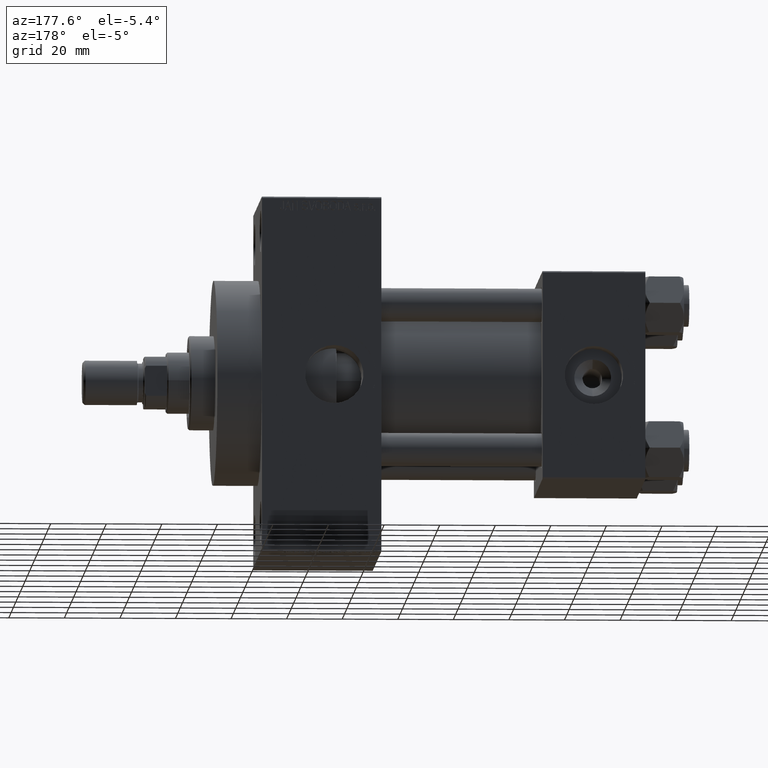
[diagram: clean part render]
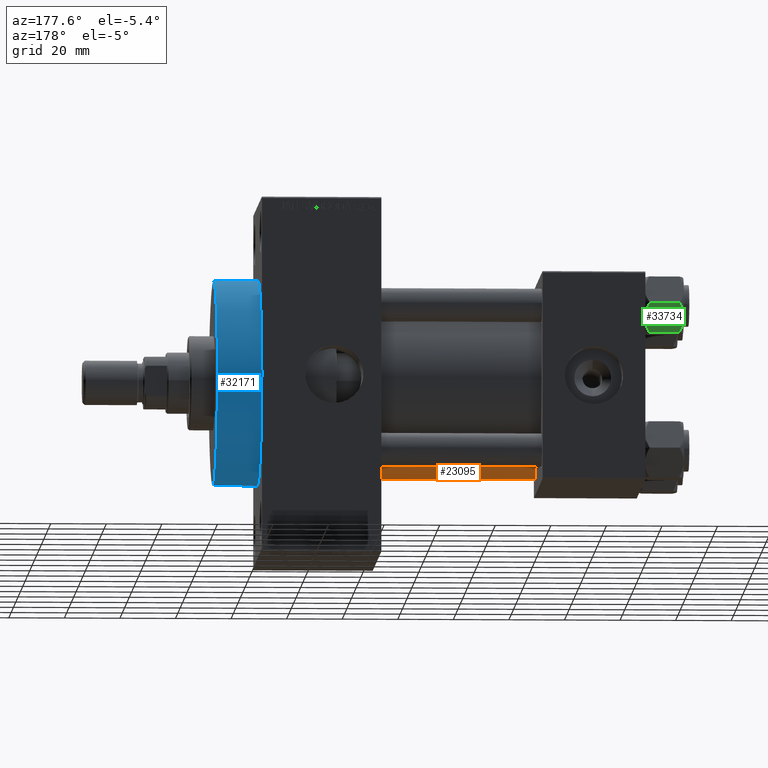
[diagram: same view with three faces highlighted in distinct colors, each labeled with its STEP entity id]
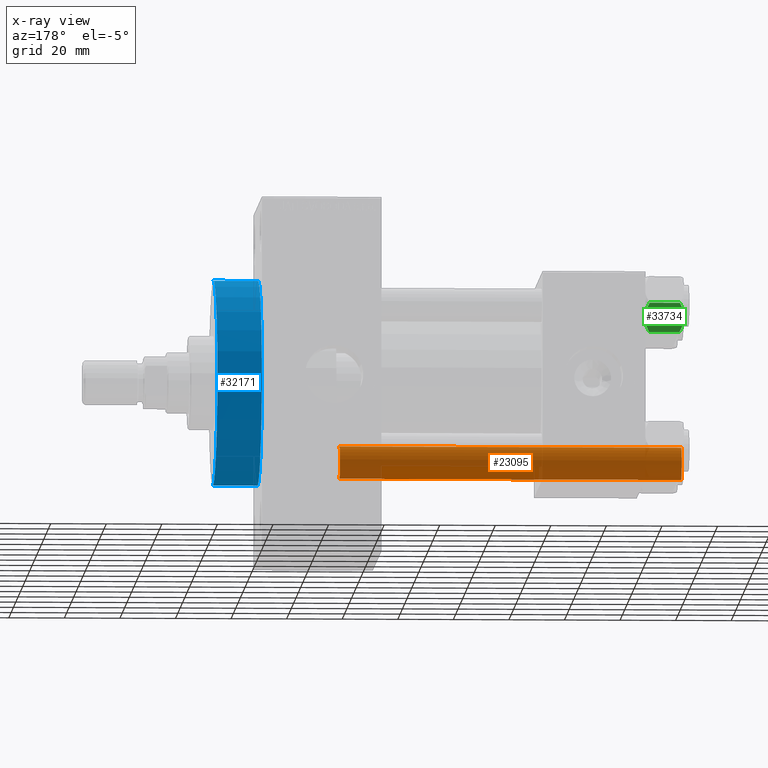
[diagram: x-ray of the same camera — body ghosted, the three highlighted faces saturated]
A machine part, auxiliary view with three faces highlighted in distinct colors.
The next image is the same camera in x-ray (body ghosted, the three faces saturated) — at least one of them is partly hidden behind the body in this view.
Their STEP definitions:

[orange] entity #23095 — the highlighted cylindrical surface (edge-blend (fillet) strip) has radius 6 mm, axis along (-1, 0, 0).
#2089 = DIRECTION ( 'NONE',  ( -0.000000000000000000, -0.000000000000000000, -1.000000000000000000 ) ) ;
#2328 = CARTESIAN_POINT ( 'NONE',  ( -6.000000000000000888, 0.000000000000000000, 124.0000000000000000 ) ) ;
#2750 = VERTEX_POINT ( 'NONE', #39087 ) ;
#4445 = CYLINDRICAL_SURFACE ( 'NONE', #10759, 6.000000000000000888 ) ;
#5394 = DIRECTION ( 'NONE',  ( -0.000000000000000000, -0.000000000000000000, -1.000000000000000000 ) ) ;
#6761 = VECTOR ( 'NONE', #2089, 1000.000000000000000 ) ;
#6886 = ORIENTED_EDGE ( 'NONE', *, *, #37283, .F. ) ;
#7507 = EDGE_CURVE ( 'NONE', #23449, #25706, #10220, .T. ) ;
#8999 = CIRCLE ( 'NONE', #43643, 6.000000000000000888 ) ;
#10220 = CIRCLE ( 'NONE', #14848, 6.000000000000000888 ) ;
#10759 = AXIS2_PLACEMENT_3D ( 'NONE', #19187, #19893, #33861 ) ;
#12713 = DIRECTION ( 'NONE',  ( -0.000000000000000000, -0.000000000000000000, 1.000000000000000000 ) ) ;
#14646 = ORIENTED_EDGE ( 'NONE', *, *, #18902, .T. ) ;
#14848 = AXIS2_PLACEMENT_3D ( 'NONE', #23781, #12713, #24740 ) ;
#17003 = EDGE_CURVE ( 'NONE', #37141, #2750, #8999, .T. ) ;
#17534 = DIRECTION ( 'NONE',  ( 0.000000000000000000, 0.000000000000000000, -1.000000000000000000 ) ) ;
#17612 = ORIENTED_EDGE ( 'NONE', *, *, #17003, .T. ) ;
#18029 = ORIENTED_EDGE ( 'NONE', *, *, #7507, .T. ) ;
#18902 = EDGE_CURVE ( 'NONE', #2750, #23449, #20442, .T. ) ;
#19187 = CARTESIAN_POINT ( 'NONE',  ( 0.000000000000000000, 0.000000000000000000, 124.0000000000000000 ) ) ;
#19893 = DIRECTION ( 'NONE',  ( -0.000000000000000000, -0.000000000000000000, -1.000000000000000000 ) ) ;
#20442 = LINE ( 'NONE', #2328, #6761 ) ;
#20849 = LINE ( 'NONE', #23735, #23430 ) ;
#23095 = ADVANCED_FACE ( 'NONE', ( #37494 ), #4445, .T. ) ;
#23430 = VECTOR ( 'NONE', #5394, 1000.000000000000000 ) ;
#23449 = VERTEX_POINT ( 'NONE', #41600 ) ;
#23735 = CARTESIAN_POINT ( 'NONE',  ( 6.000000000000000888, 7.347880794884120722E-16, 124.0000000000000000 ) ) ;
#23781 = CARTESIAN_POINT ( 'NONE',  ( 0.000000000000000000, 0.000000000000000000, 0.4999999999999865663 ) ) ;
#24609 = EDGE_LOOP ( 'NONE', ( #6886, #17612, #14646, #18029 ) ) ;
#24740 = DIRECTION ( 'NONE',  ( 1.000000000000000000, 0.000000000000000000, 0.000000000000000000 ) ) ;
#25231 = DIRECTION ( 'NONE',  ( 1.000000000000000000, 0.000000000000000000, 0.000000000000000000 ) ) ;
#25706 = VERTEX_POINT ( 'NONE', #47556 ) ;
#33861 = DIRECTION ( 'NONE',  ( -1.000000000000000000, 0.000000000000000000, 0.000000000000000000 ) ) ;
#35538 = CARTESIAN_POINT ( 'NONE',  ( 6.000000000000000888, 7.347880794884120722E-16, 123.5000000000000426 ) ) ;
#37141 = VERTEX_POINT ( 'NONE', #35538 ) ;
#37283 = EDGE_CURVE ( 'NONE', #37141, #25706, #20849, .T. ) ;
#37494 = FACE_OUTER_BOUND ( 'NONE', #24609, .T. ) ;
#39087 = CARTESIAN_POINT ( 'NONE',  ( -6.000000000000000888, 0.000000000000000000, 123.5000000000000426 ) ) ;
#41600 = CARTESIAN_POINT ( 'NONE',  ( -6.000000000000000888, 0.000000000000000000, 0.4999999999999865663 ) ) ;
#43643 = AXIS2_PLACEMENT_3D ( 'NONE', #47169, #17534, #25231 ) ;
#47169 = CARTESIAN_POINT ( 'NONE',  ( 0.000000000000000000, 0.000000000000000000, 123.5000000000000426 ) ) ;
#47556 = CARTESIAN_POINT ( 'NONE',  ( 6.000000000000000888, 7.347880794884120722E-16, 0.4999999999999865663 ) ) ;

[blue] entity #32171 — the highlighted cylindrical surface (partial cylindrical patch) has radius 37 mm, axis along (-1, -0, -0).
#270 = EDGE_LOOP ( 'NONE', ( #39068, #43262, #32521, #40527 ) ) ;
#972 = CARTESIAN_POINT ( 'NONE',  ( 154.0000000000000284, 0.000000000000000000, 0.000000000000000000 ) ) ;
#4518 = CIRCLE ( 'NONE', #6047, 37.00000000000000000 ) ;
#5699 = EDGE_CURVE ( 'NONE', #33752, #13421, #17079, .T. ) ;
#5858 = DIRECTION ( 'NONE',  ( -1.000000000000000000, -0.000000000000000000, -0.000000000000000000 ) ) ;
#6047 = AXIS2_PLACEMENT_3D ( 'NONE', #47114, #9752, #24458 ) ;
#7098 = EDGE_CURVE ( 'NONE', #17396, #33752, #31420, .T. ) ;
#9752 = DIRECTION ( 'NONE',  ( 1.000000000000000000, 0.000000000000000000, 0.000000000000000000 ) ) ;
#10779 = VECTOR ( 'NONE', #24167, 1000.000000000000000 ) ;
#11122 = CYLINDRICAL_SURFACE ( 'NONE', #36359, 37.00000000000000000 ) ;
#13129 = DIRECTION ( 'NONE',  ( 0.000000000000000000, 0.000000000000000000, -1.000000000000000000 ) ) ;
#13421 = VERTEX_POINT ( 'NONE', #26701 ) ;
#17079 = CIRCLE ( 'NONE', #23219, 37.00000000000000000 ) ;
#17396 = VERTEX_POINT ( 'NONE', #22969 ) ;
#20968 = VECTOR ( 'NONE', #5858, 1000.000000000000000 ) ;
#21152 = EDGE_CURVE ( 'NONE', #17396, #21915, #4518, .T. ) ;
#21915 = VERTEX_POINT ( 'NONE', #44737 ) ;
#22204 = DIRECTION ( 'NONE',  ( -1.000000000000000000, -0.000000000000000000, -0.000000000000000000 ) ) ;
#22969 = CARTESIAN_POINT ( 'NONE',  ( 154.0000000000000284, 4.531193156845206793E-15, -37.00000000000000000 ) ) ;
#23219 = AXIS2_PLACEMENT_3D ( 'NONE', #39155, #41171, #13129 ) ;
#23288 = CARTESIAN_POINT ( 'NONE',  ( 138.0000000000000000, 4.531193156845206793E-15, -37.00000000000000000 ) ) ;
#24167 = DIRECTION ( 'NONE',  ( -1.000000000000000000, -0.000000000000000000, -0.000000000000000000 ) ) ;
#24458 = DIRECTION ( 'NONE',  ( 0.000000000000000000, 0.000000000000000000, -1.000000000000000000 ) ) ;
#25121 = CARTESIAN_POINT ( 'NONE',  ( 154.0000000000000284, 0.000000000000000000, 37.00000000000000000 ) ) ;
#26701 = CARTESIAN_POINT ( 'NONE',  ( 138.0000000000000000, 0.000000000000000000, 37.00000000000000000 ) ) ;
#26770 = FACE_OUTER_BOUND ( 'NONE', #270, .T. ) ;
#31420 = LINE ( 'NONE', #35037, #20968 ) ;
#32171 = ADVANCED_FACE ( 'NONE', ( #26770 ), #11122, .T. ) ;
#32521 = ORIENTED_EDGE ( 'NONE', *, *, #5699, .T. ) ;
#33752 = VERTEX_POINT ( 'NONE', #23288 ) ;
#35037 = CARTESIAN_POINT ( 'NONE',  ( 154.0000000000000284, 4.531193156845206793E-15, -37.00000000000000000 ) ) ;
#35727 = LINE ( 'NONE', #25121, #10779 ) ;
#36359 = AXIS2_PLACEMENT_3D ( 'NONE', #972, #22204, #40524 ) ;
#39068 = ORIENTED_EDGE ( 'NONE', *, *, #21152, .F. ) ;
#39155 = CARTESIAN_POINT ( 'NONE',  ( 138.0000000000000000, 0.000000000000000000, 0.000000000000000000 ) ) ;
#39878 = EDGE_CURVE ( 'NONE', #21915, #13421, #35727, .T. ) ;
#40524 = DIRECTION ( 'NONE',  ( 0.000000000000000000, 0.000000000000000000, 1.000000000000000000 ) ) ;
#40527 = ORIENTED_EDGE ( 'NONE', *, *, #39878, .F. ) ;
#41171 = DIRECTION ( 'NONE',  ( 1.000000000000000000, 0.000000000000000000, 0.000000000000000000 ) ) ;
#43262 = ORIENTED_EDGE ( 'NONE', *, *, #7098, .T. ) ;
#44737 = CARTESIAN_POINT ( 'NONE',  ( 154.0000000000000284, 0.000000000000000000, 37.00000000000000000 ) ) ;
#47114 = CARTESIAN_POINT ( 'NONE',  ( 154.0000000000000284, 0.000000000000000000, 0.000000000000000000 ) ) ;

[green] entity #33734 — the highlighted planar face has unit normal (-0, -0.866, 0.5).
#10 = VERTEX_POINT ( 'NONE', #35 ) ;
#35 = CARTESIAN_POINT ( 'NONE',  ( 11.62000000000000099, -1.689012838886770227E-15, -12.44321519197518633 ) ) ;
#359 = CARTESIAN_POINT ( 'NONE',  ( 10.69662495661650503, 1.599332489581333672, -13.28854452935655139 ) ) ;
#1917 = CARTESIAN_POINT ( 'NONE',  ( 8.969430103550381617, 4.590921729663312689, 3.523657060577888622E-15 ) ) ;
#3192 = CARTESIAN_POINT ( 'NONE',  ( 7.700834831386345058, 6.788193195293094284, -13.80960203119265906 ) ) ;
#3582 = ORIENTED_EDGE ( 'NONE', *, *, #40160, .F. ) ;
#5284 = CARTESIAN_POINT ( 'NONE',  ( 11.62000000000000099, -1.924525737834042474E-15, -1.556784808024813893 ) ) ;
#5367 = CARTESIAN_POINT ( 'NONE',  ( 8.209704053696576409, 5.906805847843727086, 3.430483436379916373E-15 ) ) ;
#5851 = CARTESIAN_POINT ( 'NONE',  ( 8.715000000000005187, 5.031607595987590109, 0.000000000000000000 ) ) ;
#8091 = VERTEX_POINT ( 'NONE', #34556 ) ;
#10045 = EDGE_CURVE ( 'NONE', #10, #11428, #41136, .T. ) ;
#10514 = CARTESIAN_POINT ( 'NONE',  ( 9.220295946303432189, 4.156409344131451356, -14.00000000000000178 ) ) ;
#10639 = CARTESIAN_POINT ( 'NONE',  ( 11.62000000000000099, -1.924525737834042474E-15, -1.556784808024813893 ) ) ;
#11176 = B_SPLINE_CURVE_WITH_KNOTS ( 'NONE', 3,
 ( #14092, #46126, #13844, #43003, #3192, #21531, #46382, #39386 ),
 .UNSPECIFIED., .F., .F.,
 ( 4, 2, 2, 4 ),
 ( 2.544312114902182352E-07, 0.003011550106433542526, 0.004517197944044567919, 0.006022845781655592444 ),
 .UNSPECIFIED. ) ;
#11252 = CARTESIAN_POINT ( 'NONE',  ( 11.62000000000000099, -1.813166800014576593E-15, -14.00000000000000000 ) ) ;
#11428 = VERTEX_POINT ( 'NONE', #10639 ) ;
#11846 = CARTESIAN_POINT ( 'NONE',  ( 11.16445427487472131, 0.7890283410877956261, -1.101239082899531985 ) ) ;
#12266 = B_SPLINE_CURVE_WITH_KNOTS ( 'NONE', 3,
 ( #5851, #5367, #28050, #38409, #45400, #38656 ),
 .UNSPECIFIED., .F., .F.,
 ( 4, 2, 4 ),
 ( 0.006022845781655588107, 0.009013049135303636758, 0.01200325248895168367 ),
 .UNSPECIFIED. ) ;
#13641 = EDGE_CURVE ( 'NONE', #31451, #10, #40709, .T. ) ;
#13844 = CARTESIAN_POINT ( 'NONE',  ( 6.731401448974991375, 8.467301068182917945, -13.28585617404753627 ) ) ;
#14092 = CARTESIAN_POINT ( 'NONE',  ( 5.810000000000000497, 10.06321519197518022, -12.44321519197518455 ) ) ;
#14669 = DIRECTION ( 'NONE',  ( -0.000000000000000000, -0.000000000000000000, 1.000000000000000000 ) ) ;
#14926 = B_SPLINE_CURVE_WITH_KNOTS ( 'NONE', 3,
 ( #5284, #11846, #32277, #20507, #28674, #31819, #1917, #42919 ),
 .UNSPECIFIED., .F., .F.,
 ( 4, 2, 2, 4 ),
 ( 2.544312114903581015E-07, 0.003011550106433540791, 0.004517197944044564449, 0.006022845781655588107 ),
 .UNSPECIFIED. ) ;
#15177 = ORIENTED_EDGE ( 'NONE', *, *, #13641, .F. ) ;
#15756 = CARTESIAN_POINT ( 'NONE',  ( 8.715000000000005187, 5.031607595987590109, 0.000000000000000000 ) ) ;
#17807 = CARTESIAN_POINT ( 'NONE',  ( 8.715000000000005187, 5.031607595987590109, -14.00000000000000000 ) ) ;
#18236 = CARTESIAN_POINT ( 'NONE',  ( 11.16498164529022574, 0.7881149087337292469, -12.89823354668504862 ) ) ;
#19912 = PLANE ( 'NONE',  #32535 ) ;
#20147 = DIRECTION ( 'NONE',  ( -0.8660254037844387076, -0.4999999999999998335, 0.000000000000000000 ) ) ;
#20507 = CARTESIAN_POINT ( 'NONE',  ( 9.974696630283190757, 2.849749030213792000, -0.3002673809867367205 ) ) ;
#21531 = CARTESIAN_POINT ( 'NONE',  ( 8.202333004087901003, 5.919572880271053883, -13.96005881939309567 ) ) ;
#21798 = ORIENTED_EDGE ( 'NONE', *, *, #44232, .T. ) ;
#22882 = ORIENTED_EDGE ( 'NONE', *, *, #24775, .F. ) ;
#23992 = CARTESIAN_POINT ( 'NONE',  ( 5.810000000000000497, 10.06321519197518022, -14.00000000000000000 ) ) ;
#24241 = DIRECTION ( 'NONE',  ( 0.4999999999999998335, -0.8660254037844387076, 0.000000000000000000 ) ) ;
#24775 = EDGE_CURVE ( 'NONE', #47470, #37172, #12266, .T. ) ;
#24796 = VECTOR ( 'NONE', #14669, 1000.000000000000000 ) ;
#26997 = EDGE_LOOP ( 'NONE', ( #30536, #21798, #22882, #3582, #33830, #15177 ) ) ;
#28050 = CARTESIAN_POINT ( 'NONE',  ( 7.713000053756307928, 6.767122412062951398, -0.1545239700039825748 ) ) ;
#28674 = CARTESIAN_POINT ( 'NONE',  ( 9.729165168613654657, 3.275021996682081493, -0.1903979688073405840 ) ) ;
#29519 = VECTOR ( 'NONE', #40423, 1000.000000000000000 ) ;
#30500 = CARTESIAN_POINT ( 'NONE',  ( 5.810000000000000497, 10.06321519197518022, -1.556784808024815892 ) ) ;
#30536 = ORIENTED_EDGE ( 'NONE', *, *, #44578, .F. ) ;
#31451 = VERTEX_POINT ( 'NONE', #17807 ) ;
#31819 = CARTESIAN_POINT ( 'NONE',  ( 9.227666995912102266, 4.143642311704121894, -0.03994118060690670519 ) ) ;
#32277 = CARTESIAN_POINT ( 'NONE',  ( 10.69859855102501278, 1.595914123792262718, -0.7141438259524649501 ) ) ;
#32535 = AXIS2_PLACEMENT_3D ( 'NONE', #23992, #20147, #24241 ) ;
#33139 = CARTESIAN_POINT ( 'NONE',  ( 11.62000000000000099, -1.689012838886770227E-15, -12.44321519197518633 ) ) ;
#33734 = ADVANCED_FACE ( 'NONE', ( #42078 ), #19912, .F. ) ;
#33830 = ORIENTED_EDGE ( 'NONE', *, *, #10045, .F. ) ;
#34556 = CARTESIAN_POINT ( 'NONE',  ( 5.810000000000000497, 10.06321519197518022, -12.44321519197518455 ) ) ;
#37002 = CARTESIAN_POINT ( 'NONE',  ( 9.716999946243698005, 3.296092779912226156, -13.84547602999602134 ) ) ;
#37172 = VERTEX_POINT ( 'NONE', #30500 ) ;
#38409 = CARTESIAN_POINT ( 'NONE',  ( 6.733375043383499126, 8.463882702393844326, -0.7114554706434494946 ) ) ;
#38656 = CARTESIAN_POINT ( 'NONE',  ( 5.810000000000000497, 10.06321519197518022, -1.556784808024815892 ) ) ;
#39386 = CARTESIAN_POINT ( 'NONE',  ( 8.715000000000005187, 5.031607595987590109, -14.00000000000000000 ) ) ;
#40160 = EDGE_CURVE ( 'NONE', #11428, #47470, #14926, .T. ) ;
#40423 = DIRECTION ( 'NONE',  ( -0.000000000000000000, -0.000000000000000000, 1.000000000000000000 ) ) ;
#40709 = B_SPLINE_CURVE_WITH_KNOTS ( 'NONE', 3,
 ( #44475, #10514, #37002, #359, #18236, #33139 ),
 .UNSPECIFIED., .F., .F.,
 ( 4, 2, 4 ),
 ( 0.006022845781655592444, 0.009013049135303636758, 0.01200325248895168194 ),
 .UNSPECIFIED. ) ;
#41136 = LINE ( 'NONE', #11252, #29519 ) ;
#42078 = FACE_OUTER_BOUND ( 'NONE', #26997, .T. ) ;
#42919 = CARTESIAN_POINT ( 'NONE',  ( 8.715000000000005187, 5.031607595987590109, 0.000000000000000000 ) ) ;
#43003 = CARTESIAN_POINT ( 'NONE',  ( 7.455303369716807182, 7.213466161761384221, -13.69973261901325934 ) ) ;
#44232 = EDGE_CURVE ( 'NONE', #8091, #37172, #44532, .T. ) ;
#44475 = CARTESIAN_POINT ( 'NONE',  ( 8.715000000000005187, 5.031607595987590109, -14.00000000000000000 ) ) ;
#44532 = LINE ( 'NONE', #47670, #24796 ) ;
#44578 = EDGE_CURVE ( 'NONE', #8091, #31451, #11176, .T. ) ;
#45400 = CARTESIAN_POINT ( 'NONE',  ( 6.265018354709773973, 9.275100283241448196, -1.101766453314953154 ) ) ;
#46126 = CARTESIAN_POINT ( 'NONE',  ( 6.265545725125286403, 9.274186850887383926, -12.89876091710046957 ) ) ;
#46382 = CARTESIAN_POINT ( 'NONE',  ( 8.460569896449618099, 5.472293462311861312, -14.00000000000000000 ) ) ;
#47470 = VERTEX_POINT ( 'NONE', #15756 ) ;
#47670 = CARTESIAN_POINT ( 'NONE',  ( 5.810000000000000497, 10.06321519197518022, -14.00000000000000000 ) ) ;